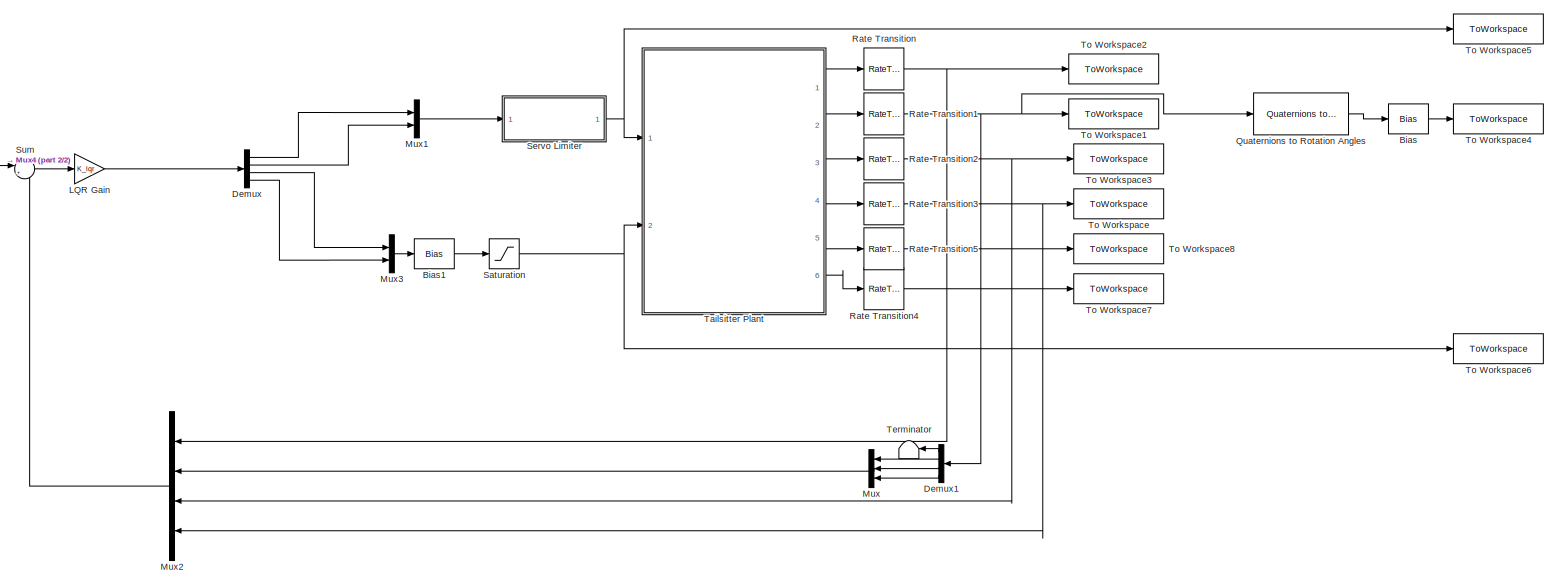
[diagram: root canvas - part 1/2, most of the canvas]
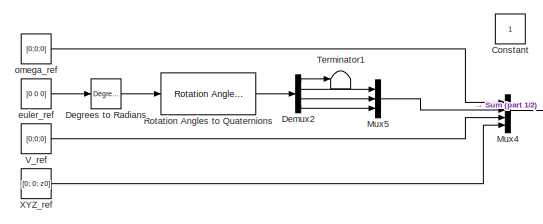
[diagram: root canvas - part 2/2, top left region]
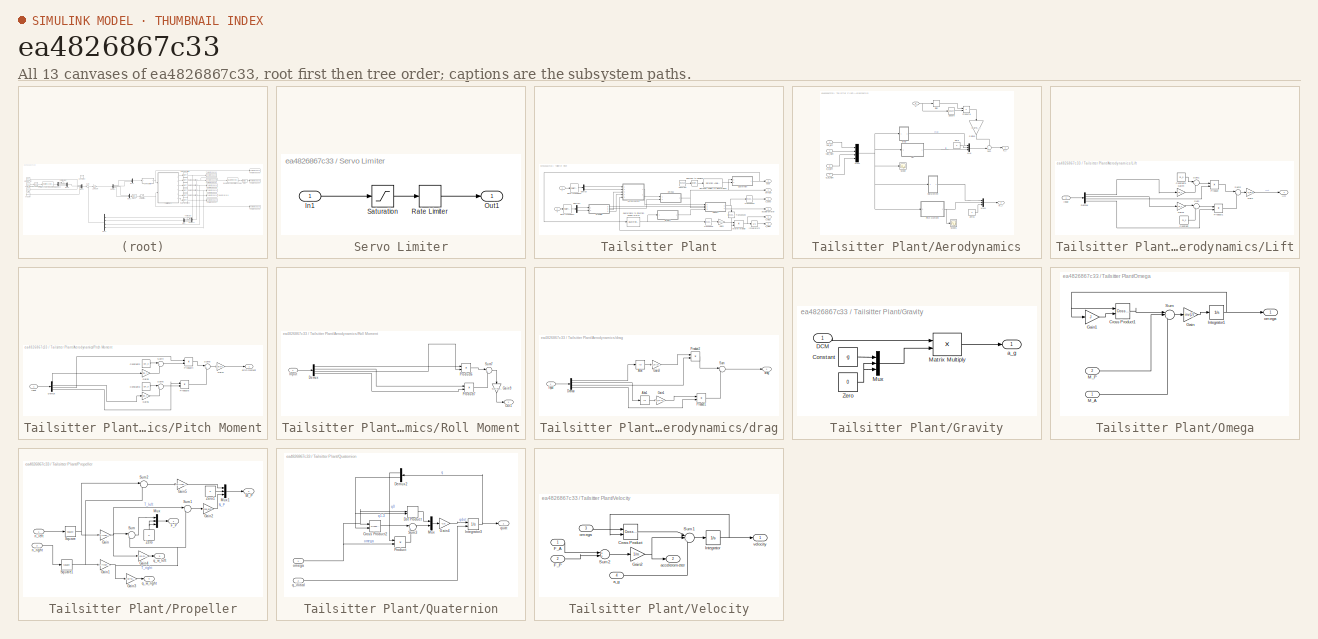
[diagram: thumbnail index - all 13 canvases of the model, root first then tree order]
MODEL slx_ea4826867c33
KIND model
CONFIG AbsTol = auto
CONFIG EnableMultiTasking = off
CONFIG FixedStep = auto
CONFIG MaxStep = auto
CONFIG MinStep = auto
CONFIG RelTol = 1e-3
CONFIG SampleTimeConstraint = Unconstrained
CONFIG SolverName = VariableStepAuto
CONFIG StartTime = 0.0
CONFIG StopTime = tf
BLOCK [Bias] Bias
  Bias = [0; pi/2; 0]
  SaturateOnIntegerOverflow = off
BLOCK [Bias] Bias1
  Bias = motor_eq
  SaturateOnIntegerOverflow = off
BLOCK [Constant] Constant
  IOType = siggen
BLOCK [Reference] Degrees to Radians  REF=simulink_extras/Transformations/Degrees to
Radians
  Ports = [1, 1]
  SourceBlock = simulink_extras/Transformations/Degrees to\nRadians
  SourceProductBaseCode = SL
  SourceType = DegreesToRadians
BLOCK [Demux] Demux
  Ports = [1, 4]
BLOCK [Demux] Demux1
  NameLocation = top
  Ports = [1, 4]
BLOCK [Demux] Demux2
  Ports = [1, 4]
BLOCK [Gain] LQR Gain
  Gain = K_lqr
  Multiplication = Matrix(K*u)
BLOCK [Mux] Mux
  DisplayOption = bar
  Inputs = 3
  NameLocation = top
  Ports = [3, 1]
BLOCK [Mux] Mux1
  DisplayOption = bar
  Inputs = 2
  Ports = [2, 1]
BLOCK [Mux] Mux2
  DisplayOption = bar
  NameLocation = top
  Ports = [4, 1]
BLOCK [Mux] Mux3
  DisplayOption = bar
  Inputs = 2
  Ports = [2, 1]
BLOCK [Mux] Mux4
  DisplayOption = bar
  Ports = [4, 1]
BLOCK [Mux] Mux5
  DisplayOption = bar
  Inputs = 3
  Ports = [3, 1]
BLOCK [Reference] Quaternions to Rotation Angles  REF=sharedtransform/Quaternions to Rotation Angles
  AttributesFormatString = Rotation Order: %<rotationOrder>
  Ports = [1, 1]
  SourceBlock = sharedtransform/Quaternions to Rotation Angles
  SourceProductBaseCode = AE,PW,DR,MT,UV,VE
  SourceType = Quat2Ang
BLOCK [RateTransition] Rate Transition
  OutPortSampleTime = dt
BLOCK [RateTransition] Rate Transition1
  OutPortSampleTime = dt
BLOCK [RateTransition] Rate Transition2
  OutPortSampleTime = dt
BLOCK [RateTransition] Rate Transition3
  OutPortSampleTime = dt
BLOCK [RateTransition] Rate Transition4
  OutPortSampleTime = 0.005
BLOCK [RateTransition] Rate Transition5
  OutPortSampleTime = dt
BLOCK [Reference] Rotation Angles to Quaternions  REF=sharedtransform/Rotation Angles to Quaternions
  AttributesFormatString = Rotation Order: %<rotationOrder>
  Ports = [1, 1]
  SourceBlock = sharedtransform/Rotation Angles to Quaternions
  SourceProductBaseCode = AE,PW,DR,MT,UV,VE
  SourceType = Ang2Quat
BLOCK [Saturate] Saturation
  LowerLimit = 0
  UpperLimit = 500
BLOCK [SubSystem] Servo Limiter
  Ports = [1, 1]
  RequestExecContextInheritance = off
BLOCK [Inport] Servo Limiter/In1
BLOCK [Outport] Servo Limiter/Out1
BLOCK [RateLimiter] Servo Limiter/Rate Limiter
  FallingSlewLimit = -400
  RisingSlewLimit = 400
  SampleTimeMode = inherited
BLOCK [Saturate] Servo Limiter/Saturation
  LowerLimit = -20
  UpperLimit = 20
BLOCK [Sum] Sum
  Inputs = |+-
  Ports = [2, 1]
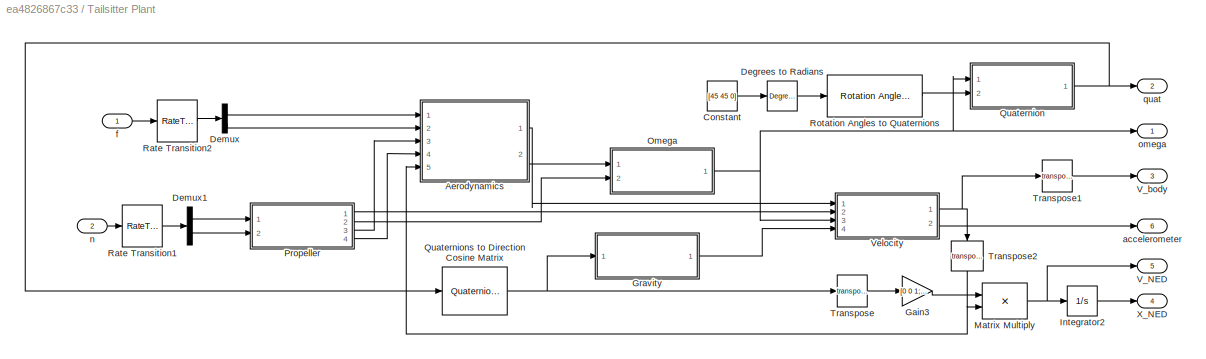
BLOCK [SubSystem] Tailsitter Plant
  Ports = [2, 6]
  RequestExecContextInheritance = off
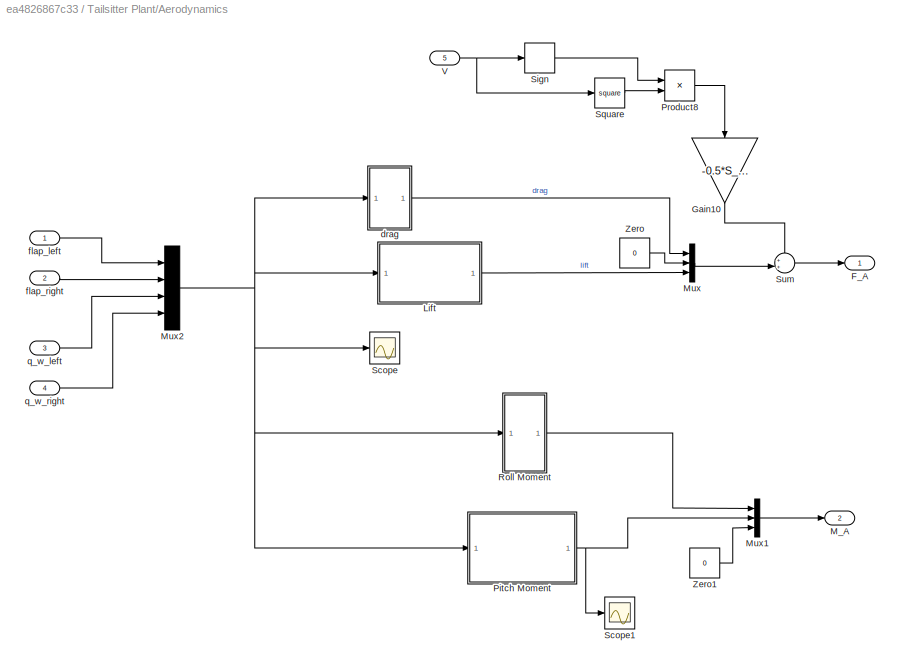
BLOCK [SubSystem] Tailsitter Plant/Aerodynamics
  Ports = [5, 2]
  RequestExecContextInheritance = off
BLOCK [Outport] Tailsitter Plant/Aerodynamics/F_A
BLOCK [Gain] Tailsitter Plant/Aerodynamics/Gain10
  Gain = -0.5*S_w*diag([0.1 0.1 1.3])
  Multiplication = Matrix(K*u) (u vector)
  NameLocation = left
BLOCK [SubSystem] Tailsitter Plant/Aerodynamics/Lift
  Ports = [1, 1]
  RequestExecContextInheritance = off
BLOCK [Constant] Tailsitter Plant/Aerodynamics/Lift/Constant
  Value = CL_0
BLOCK [Constant] Tailsitter Plant/Aerodynamics/Lift/Constant1
  Value = CL_0
BLOCK [Demux] Tailsitter Plant/Aerodynamics/Lift/Demux
  Ports = [1, 4]
BLOCK [Gain] Tailsitter Plant/Aerodynamics/Lift/Gain
  Gain = -S_w/2
BLOCK [Gain] Tailsitter Plant/Aerodynamics/Lift/Gain1
  Gain = CL_f
BLOCK [Gain] Tailsitter Plant/Aerodynamics/Lift/Gain4
  Gain = CL_f
BLOCK [Inport] Tailsitter Plant/Aerodynamics/Lift/Input
BLOCK [Product] Tailsitter Plant/Aerodynamics/Lift/Product
  Ports = [2, 1]
BLOCK [Product] Tailsitter Plant/Aerodynamics/Lift/Product1
  Ports = [2, 1]
BLOCK [Sum] Tailsitter Plant/Aerodynamics/Lift/Sum
  Inputs = |++
  Ports = [2, 1]
BLOCK [Sum] Tailsitter Plant/Aerodynamics/Lift/Sum1
  Inputs = |++
  Ports = [2, 1]
BLOCK [Sum] Tailsitter Plant/Aerodynamics/Lift/Sum2
  Inputs = |++
  Ports = [2, 1]
BLOCK [Outport] Tailsitter Plant/Aerodynamics/Lift/lift
BLOCK [Outport] Tailsitter Plant/Aerodynamics/M_A
  Port = 2
BLOCK [Mux] Tailsitter Plant/Aerodynamics/Mux
  DisplayOption = bar
  Inputs = 3
  Ports = [3, 1]
BLOCK [Mux] Tailsitter Plant/Aerodynamics/Mux1
  DisplayOption = bar
  Inputs = 3
  Ports = [3, 1]
BLOCK [Mux] Tailsitter Plant/Aerodynamics/Mux2
  DisplayOption = bar
  Ports = [4, 1]
BLOCK [SubSystem] Tailsitter Plant/Aerodynamics/Pitch Moment
  Ports = [1, 1]
  RequestExecContextInheritance = off
BLOCK [Constant] Tailsitter Plant/Aerodynamics/Pitch Moment/Constant2
  Value = Cm_0
BLOCK [Constant] Tailsitter Plant/Aerodynamics/Pitch Moment/Constant3
  Value = Cm_0
BLOCK [Demux] Tailsitter Plant/Aerodynamics/Pitch Moment/Demux
  Ports = [1, 4]
BLOCK [Gain] Tailsitter Plant/Aerodynamics/Pitch Moment/Gain5
  Gain = Cm_f
BLOCK [Gain] Tailsitter Plant/Aerodynamics/Pitch Moment/Gain6
  Gain = Cm_f
BLOCK [Gain] Tailsitter Plant/Aerodynamics/Pitch Moment/Gain7
  Gain = S_w/2*c_bar
BLOCK [Inport] Tailsitter Plant/Aerodynamics/Pitch Moment/Input
BLOCK [Product] Tailsitter Plant/Aerodynamics/Pitch Moment/Product4
  Ports = [2, 1]
BLOCK [Product] Tailsitter Plant/Aerodynamics/Pitch Moment/Product5
  Ports = [2, 1]
BLOCK [Sum] Tailsitter Plant/Aerodynamics/Pitch Moment/Sum4
  Inputs = |++
  Ports = [2, 1]
BLOCK [Sum] Tailsitter Plant/Aerodynamics/Pitch Moment/Sum5
  Inputs = |++
  Ports = [2, 1]
BLOCK [Sum] Tailsitter Plant/Aerodynamics/Pitch Moment/Sum6
  Inputs = |++
  Ports = [2, 1]
BLOCK [Outport] Tailsitter Plant/Aerodynamics/Pitch Moment/pitch moment
BLOCK [Product] Tailsitter Plant/Aerodynamics/Product8
  Ports = [2, 1]
BLOCK [SubSystem] Tailsitter Plant/Aerodynamics/Roll Moment
  Ports = [1, 1]
  RequestExecContextInheritance = off
BLOCK [Demux] Tailsitter Plant/Aerodynamics/Roll Moment/Demux
  Ports = [1, 4]
BLOCK [Gain] Tailsitter Plant/Aerodynamics/Roll Moment/Gain9
  Gain = S_w/2*b*Cl_f
  NameLocation = left
BLOCK [Inport] Tailsitter Plant/Aerodynamics/Roll Moment/Input
BLOCK [Outport] Tailsitter Plant/Aerodynamics/Roll Moment/Out1
BLOCK [Product] Tailsitter Plant/Aerodynamics/Roll Moment/Product6
  Ports = [2, 1]
BLOCK [Product] Tailsitter Plant/Aerodynamics/Roll Moment/Product7
  Ports = [2, 1]
BLOCK [Sum] Tailsitter Plant/Aerodynamics/Roll Moment/Sum7
  Inputs = |+-
  Ports = [2, 1]
BLOCK [Scope] Tailsitter Plant/Aerodynamics/Scope
  Floating = off
  NumInputPorts = 1
  Ports = [1]
  ScopeSpecificationString = Simulink.scopes.TimeScopeBlockCfg('CurrentConfiguration', extmgr.ConfigurationSet(extmgr.Configuration('Core','General UI',true),extmgr.Configuration('Core','Source UI',true),extmgr.Configuration('Sources','WiredSimulink',true,'DataLoggingVariableName','ScopeData3'),extmgr.Configuration('Visuals','Time Domain',true,'SerializedDisplays',{struct('MinYLimReal','-13.86762','MaxYLimReal','107.44376','Y...<+1414ch>
BLOCK [Scope] Tailsitter Plant/Aerodynamics/Scope1
  Floating = off
  NumInputPorts = 1
  Ports = [1]
  ScopeSpecificationString = Simulink.scopes.TimeScopeBlockCfg('CurrentConfiguration', extmgr.ConfigurationSet(extmgr.Configuration('Core','General UI',true),extmgr.Configuration('Core','Source UI',true),extmgr.Configuration('Sources','WiredSimulink',true,'DataLoggingVariableName','ScopeData4'),extmgr.Configuration('Visuals','Time Domain',true,'SerializedDisplays',{struct('MinYLimReal','-0.01426','MaxYLimReal','0.02364','YLab...<+1371ch>
BLOCK [Signum] Tailsitter Plant/Aerodynamics/Sign
BLOCK [Math] Tailsitter Plant/Aerodynamics/Square
  Operator = square
  Ports = [1, 1]
BLOCK [Sum] Tailsitter Plant/Aerodynamics/Sum
  Inputs = ++|
  Ports = [2, 1]
BLOCK [Inport] Tailsitter Plant/Aerodynamics/V
  Port = 5
BLOCK [Constant] Tailsitter Plant/Aerodynamics/Zero
  OutDataTypeStr = Inherit: Inherit via back propagation
  Value = 0
BLOCK [Constant] Tailsitter Plant/Aerodynamics/Zero1
  OutDataTypeStr = Inherit: Inherit via back propagation
  Value = 0
BLOCK [SubSystem] Tailsitter Plant/Aerodynamics/drag
  Ports = [1, 1]
  RequestExecContextInheritance = off
BLOCK [Abs] Tailsitter Plant/Aerodynamics/drag/Abs
  SaturateOnIntegerOverflow = off
BLOCK [Abs] Tailsitter Plant/Aerodynamics/drag/Abs1
  SaturateOnIntegerOverflow = off
BLOCK [Demux] Tailsitter Plant/Aerodynamics/drag/Demux
  Ports = [1, 4]
BLOCK [Gain] Tailsitter Plant/Aerodynamics/drag/Gain1
  Gain = -S_w/2*CD_f
BLOCK [Gain] Tailsitter Plant/Aerodynamics/drag/Gain3
  Gain = -S_w/2*CD_f
BLOCK [Inport] Tailsitter Plant/Aerodynamics/drag/Input
BLOCK [Product] Tailsitter Plant/Aerodynamics/drag/Product1
  Ports = [2, 1]
BLOCK [Product] Tailsitter Plant/Aerodynamics/drag/Product2
  Ports = [2, 1]
BLOCK [Sum] Tailsitter Plant/Aerodynamics/drag/Sum
  Inputs = |++
  Ports = [2, 1]
BLOCK [Outport] Tailsitter Plant/Aerodynamics/drag/drag
BLOCK [Inport] Tailsitter Plant/Aerodynamics/flap_left
BLOCK [Inport] Tailsitter Plant/Aerodynamics/flap_right
  Port = 2
BLOCK [Inport] Tailsitter Plant/Aerodynamics/q_w_left
  Port = 3
BLOCK [Inport] Tailsitter Plant/Aerodynamics/q_w_right
  Port = 4
BLOCK [Constant] Tailsitter Plant/Constant
  Value = [45 45 0]
BLOCK [Reference] Tailsitter Plant/Degrees to Radians  REF=simulink_extras/Transformations/Degrees to
Radians
  Ports = [1, 1]
  SourceBlock = simulink_extras/Transformations/Degrees to\nRadians
  SourceProductBaseCode = SL
  SourceType = DegreesToRadians
BLOCK [Demux] Tailsitter Plant/Demux
  Outputs = 2
  Ports = [1, 2]
BLOCK [Demux] Tailsitter Plant/Demux1
  Outputs = 2
  Ports = [1, 2]
BLOCK [Gain] Tailsitter Plant/Gain3
  Gain = [0 0 1; 0 1 0; -1 0 0]
  Multiplication = Matrix(K*u)
BLOCK [SubSystem] Tailsitter Plant/Gravity
  Ports = [1, 1]
  RequestExecContextInheritance = off
BLOCK [Constant] Tailsitter Plant/Gravity/Constant
  Value = -g
BLOCK [Inport] Tailsitter Plant/Gravity/DCM
BLOCK [Product] Tailsitter Plant/Gravity/Matrix Multiply
  Multiplication = Matrix(*)
  Ports = [2, 1]
BLOCK [Mux] Tailsitter Plant/Gravity/Mux
  DisplayOption = bar
  Inputs = 3
  Ports = [3, 1]
BLOCK [Constant] Tailsitter Plant/Gravity/Zero
  OutDataTypeStr = Inherit: Inherit via back propagation
  Value = 0
BLOCK [Outport] Tailsitter Plant/Gravity/a_g
BLOCK [Integrator] Tailsitter Plant/Integrator2
  InitialCondition = [0;0;z0]
  Ports = [1, 1]
BLOCK [Product] Tailsitter Plant/Matrix Multiply
  Multiplication = Matrix(*)
  Ports = [2, 1]
BLOCK [SubSystem] Tailsitter Plant/Omega
  NameLocation = top
  Ports = [2, 1]
  RequestExecContextInheritance = off
BLOCK [Reference] Tailsitter Plant/Omega/Cross Product1  REF=vrlib/Utilities/Cross Product
  Ports = [2, 1]
  SourceBlock = vrlib/Utilities/Cross Product
  SourceProductBaseCode = SL
  SourceType = Cross Product
BLOCK [Gain] Tailsitter Plant/Omega/Gain
  Gain = inv(J)
  Multiplication = Matrix(K*u) (u vector)
BLOCK [Gain] Tailsitter Plant/Omega/Gain1
  Gain = J
  Multiplication = Matrix(K*u) (u vector)
BLOCK [Integrator] Tailsitter Plant/Omega/Integrator1
  Ports = [1, 1]
BLOCK [Inport] Tailsitter Plant/Omega/M_A
BLOCK [Inport] Tailsitter Plant/Omega/M_P
  Port = 2
BLOCK [Sum] Tailsitter Plant/Omega/Sum
  Inputs = |-++
  Ports = [3, 1]
BLOCK [Outport] Tailsitter Plant/Omega/omega
BLOCK [SubSystem] Tailsitter Plant/Propeller
  Ports = [2, 4]
  RequestExecContextInheritance = off
BLOCK [Outport] Tailsitter Plant/Propeller/F_P
BLOCK [Gain] Tailsitter Plant/Propeller/Gain
  Gain = CT*rho*D^4
BLOCK [Gain] Tailsitter Plant/Propeller/Gain1
  Gain = CT*rho*D^4
BLOCK [Gain] Tailsitter Plant/Propeller/Gain2
  Gain = prop_arm
BLOCK [Gain] Tailsitter Plant/Propeller/Gain3
  Gain = 4/(pi*D^2)
BLOCK [Gain] Tailsitter Plant/Propeller/Gain4
  Gain = 4/(pi*D^2)
BLOCK [Gain] Tailsitter Plant/Propeller/Gain5
  Gain = CP*rho*D^5/(2*pi)
BLOCK [Outport] Tailsitter Plant/Propeller/M_P
  Port = 2
BLOCK [Mux] Tailsitter Plant/Propeller/Mux
  DisplayOption = bar
  Inputs = 3
  Ports = [3, 1]
BLOCK [Mux] Tailsitter Plant/Propeller/Mux1
  DisplayOption = bar
  Inputs = 3
  Ports = [3, 1]
BLOCK [Math] Tailsitter Plant/Propeller/Square
  Operator = square
  Ports = [1, 1]
BLOCK [Math] Tailsitter Plant/Propeller/Square1
  Operator = square
  Ports = [1, 1]
BLOCK [Sum] Tailsitter Plant/Propeller/Sum
  Inputs = |++
  Ports = [2, 1]
BLOCK [Sum] Tailsitter Plant/Propeller/Sum1
  Inputs = |+-
  Ports = [2, 1]
BLOCK [Sum] Tailsitter Plant/Propeller/Sum2
  Inputs = |-+
  Ports = [2, 1]
BLOCK [Constant] Tailsitter Plant/Propeller/Zero
  NameLocation = right
  OutDataTypeStr = Inherit: Inherit via back propagation
  Value = 0
BLOCK [Constant] Tailsitter Plant/Propeller/Zero1
  OutDataTypeStr = Inherit: Inherit via back propagation
  Value = 0
BLOCK [Inport] Tailsitter Plant/Propeller/n_left
BLOCK [Inport] Tailsitter Plant/Propeller/n_right
  Port = 2
BLOCK [Outport] Tailsitter Plant/Propeller/q_w_left
  Port = 3
BLOCK [Outport] Tailsitter Plant/Propeller/q_w_right
  Port = 4
BLOCK [SubSystem] Tailsitter Plant/Quaternion
  Ports = [2, 1]
  RequestExecContextInheritance = off
BLOCK [Reference] Tailsitter Plant/Quaternion/Cross Product2  REF=vrlib/Utilities/Cross Product
  Ports = [2, 1]
  SourceBlock = vrlib/Utilities/Cross Product
  SourceProductBaseCode = SL
  SourceType = Cross Product
BLOCK [Demux] Tailsitter Plant/Quaternion/Demux2
  NameLocation = top
  Outputs = 2
  Ports = [1, 2]
BLOCK [DotProduct] Tailsitter Plant/Quaternion/Dot Product
  OutDataTypeStr = Inherit: Inherit via internal rule
BLOCK [Gain] Tailsitter Plant/Quaternion/Gain4
  Gain = -0.5
BLOCK [Integrator] Tailsitter Plant/Quaternion/Integrator3
  InitialCondition = [1; 0; 0; 0]
  InitialConditionSource = external
  Ports = [2, 1]
BLOCK [Mux] Tailsitter Plant/Quaternion/Mux
  DisplayOption = bar
  Inputs = 2
  Ports = [2, 1]
BLOCK [Product] Tailsitter Plant/Quaternion/Product
  Ports = [2, 1]
BLOCK [Sum] Tailsitter Plant/Quaternion/Sum3
  Inputs = |+-
  Ports = [2, 1]
BLOCK [Inport] Tailsitter Plant/Quaternion/omega
BLOCK [Inport] Tailsitter Plant/Quaternion/q_initial
  Port = 2
BLOCK [Outport] Tailsitter Plant/Quaternion/quat
BLOCK [Reference] Tailsitter Plant/Quaternions to Direction Cosine Matrix  REF=sharedtransform/Quaternions to 
Direction Cosine Matrix
  Ports = [1, 1]
  SourceBlock = sharedtransform/Quaternions to \nDirection Cosine Matrix
  SourceProductBaseCode = AE,PW,DR,MT,UV,VE
  SourceType = Quaternion2DCM
BLOCK [RateTransition] Tailsitter Plant/Rate Transition1
  OutPortSampleTimeOpt = Inherit
BLOCK [RateTransition] Tailsitter Plant/Rate Transition2
  OutPortSampleTimeOpt = Inherit
BLOCK [Reference] Tailsitter Plant/Rotation Angles to Quaternions  REF=sharedtransform/Rotation Angles to Quaternions
  AttributesFormatString = Rotation Order: %<rotationOrder>
  Ports = [1, 1]
  SourceBlock = sharedtransform/Rotation Angles to Quaternions
  SourceProductBaseCode = AE,PW,DR,MT,UV,VE
  SourceType = Ang2Quat
BLOCK [Math] Tailsitter Plant/Transpose
  Operator = transpose
  Ports = [1, 1]
BLOCK [Math] Tailsitter Plant/Transpose1
  Operator = transpose
  Ports = [1, 1]
BLOCK [Math] Tailsitter Plant/Transpose2
  NameLocation = left
  Operator = transpose
  Ports = [1, 1]
BLOCK [Outport] Tailsitter Plant/V_NED
  Port = 5
BLOCK [Outport] Tailsitter Plant/V_body
  Port = 3
BLOCK [SubSystem] Tailsitter Plant/Velocity
  Ports = [4, 2]
  RequestExecContextInheritance = off
BLOCK [Reference] Tailsitter Plant/Velocity/Cross Product  REF=vrlib/Utilities/Cross Product
  Ports = [2, 1]
  SourceBlock = vrlib/Utilities/Cross Product
  SourceProductBaseCode = SL
  SourceType = Cross Product
BLOCK [Inport] Tailsitter Plant/Velocity/F_A
BLOCK [Inport] Tailsitter Plant/Velocity/F_P
  Port = 2
BLOCK [Gain] Tailsitter Plant/Velocity/Gain2
  Gain = 1/m
BLOCK [Integrator] Tailsitter Plant/Velocity/Integrator
  Ports = [1, 1]
BLOCK [Sum] Tailsitter Plant/Velocity/Sum1
  Inputs = |-++
  Ports = [3, 1]
BLOCK [Sum] Tailsitter Plant/Velocity/Sum2
  Inputs = ++|
  Ports = [2, 1]
BLOCK [Inport] Tailsitter Plant/Velocity/a_g
  Port = 4
BLOCK [Outport] Tailsitter Plant/Velocity/accelerometer
  Port = 2
BLOCK [Inport] Tailsitter Plant/Velocity/omega
  Port = 3
BLOCK [Outport] Tailsitter Plant/Velocity/velocity
BLOCK [Outport] Tailsitter Plant/X_NED
  Port = 4
BLOCK [Outport] Tailsitter Plant/accelerometer
  Port = 6
BLOCK [Inport] Tailsitter Plant/f
BLOCK [Inport] Tailsitter Plant/n
  Port = 2
BLOCK [Outport] Tailsitter Plant/omega
BLOCK [Outport] Tailsitter Plant/quat
  Port = 2
BLOCK [Terminator] Terminator
  NameLocation = top
BLOCK [Terminator] Terminator1
BLOCK [ToWorkspace] To Workspace
  FixptAsFi = on
  MaxDataPoints = inf
  Ports = [1]
  SampleTime = -1
  VariableName = pos
BLOCK [ToWorkspace] To Workspace1
  FixptAsFi = on
  MaxDataPoints = inf
  Ports = [1]
  SampleTime = -1
  VariableName = quat
BLOCK [ToWorkspace] To Workspace2
  FixptAsFi = on
  MaxDataPoints = inf
  Ports = [1]
  SampleTime = -1
  VariableName = omega
BLOCK [ToWorkspace] To Workspace3
  FixptAsFi = on
  MaxDataPoints = inf
  Ports = [1]
  SampleTime = -1
  VariableName = V
BLOCK [ToWorkspace] To Workspace4
  FixptAsFi = on
  MaxDataPoints = inf
  Ports = [1]
  SampleTime = -1
  VariableName = euler
BLOCK [ToWorkspace] To Workspace5
  FixptAsFi = on
  MaxDataPoints = inf
  Ports = [1]
  SampleTime = -1
  VariableName = flaps
BLOCK [ToWorkspace] To Workspace6
  FixptAsFi = on
  MaxDataPoints = inf
  Ports = [1]
  SampleTime = -1
  VariableName = motors
BLOCK [ToWorkspace] To Workspace7
  FixptAsFi = on
  MaxDataPoints = inf
  Ports = [1]
  SampleTime = -1
  VariableName = accel
BLOCK [ToWorkspace] To Workspace8
  FixptAsFi = on
  MaxDataPoints = inf
  Ports = [1]
  SampleTime = -1
  VariableName = V_NED
BLOCK [Constant] V_ref
  Value = [0;0;0]
BLOCK [Constant] XYZ_ref
  Value = [0; 0; z0]
BLOCK [Constant] euler_ref
  Value = [0 0 0]
BLOCK [Constant] omega_ref
  Value = [0;0;0]
LINE Bias1:1 -> Saturation:1
LINE Bias:1 -> To Workspace4:1
LINE Degrees to Radians:1 -> Rotation Angles to Quaternions:1
LINE Demux1:1 -> Terminator:1
LINE Demux1:2 -> Mux:1
LINE Demux1:3 -> Mux:2
LINE Demux1:4 -> Mux:3
LINE Demux2:1 -> Terminator1:1
LINE Demux2:2 -> Mux5:1
LINE Demux2:3 -> Mux5:2
LINE Demux2:4 -> Mux5:3
LINE Demux:1 -> Mux1:1
LINE Demux:2 -> Mux1:2
LINE Demux:3 -> Mux3:1
LINE Demux:4 -> Mux3:2
LINE LQR Gain:1 -> Demux:1
LINE Mux1:1 -> Servo Limiter:1
LINE Mux2:1 -> Sum:2
LINE Mux3:1 -> Bias1:1
LINE Mux4:1 -> Sum:1
LINE Mux5:1 -> Mux4:2
LINE Mux:1 -> Mux2:2
LINE Quaternions to Rotation Angles:1 -> Bias:1
NET Rate Transition1:1 -> Demux1:1, Quaternions to Rotation Angles:1, To Workspace1:1
NET Rate Transition2:1 -> Mux2:3, To Workspace3:1
NET Rate Transition3:1 -> Mux2:4, To Workspace:1
LINE Rate Transition4:1 -> To Workspace7:1
LINE Rate Transition5:1 -> To Workspace8:1
NET Rate Transition:1 -> Mux2:1, To Workspace2:1
LINE Rotation Angles to Quaternions:1 -> Demux2:1
NET Saturation:1 -> Tailsitter Plant:2, To Workspace6:1
LINE Servo Limiter/In1:1 -> Servo Limiter/Saturation:1
LINE Servo Limiter/Rate Limiter:1 -> Servo Limiter/Out1:1
LINE Servo Limiter/Saturation:1 -> Servo Limiter/Rate Limiter:1
NET Servo Limiter:1 -> Tailsitter Plant:1, To Workspace5:1
LINE Sum:1 -> LQR Gain:1
LINE Tailsitter Plant/Aerodynamics/Gain10:1 -> Tailsitter Plant/Aerodynamics/Sum:1
LINE Tailsitter Plant/Aerodynamics/Lift/Constant1:1 -> Tailsitter Plant/Aerodynamics/Lift/Sum1:1
LINE Tailsitter Plant/Aerodynamics/Lift/Constant:1 -> Tailsitter Plant/Aerodynamics/Lift/Sum:2
LINE Tailsitter Plant/Aerodynamics/Lift/Demux:1 -> Tailsitter Plant/Aerodynamics/Lift/Gain4:1
LINE Tailsitter Plant/Aerodynamics/Lift/Demux:2 -> Tailsitter Plant/Aerodynamics/Lift/Gain1:1
LINE Tailsitter Plant/Aerodynamics/Lift/Demux:3 -> Tailsitter Plant/Aerodynamics/Lift/Product:2
LINE Tailsitter Plant/Aerodynamics/Lift/Demux:4 -> Tailsitter Plant/Aerodynamics/Lift/Product1:2
LINE Tailsitter Plant/Aerodynamics/Lift/Gain1:1 -> Tailsitter Plant/Aerodynamics/Lift/Sum:1
LINE Tailsitter Plant/Aerodynamics/Lift/Gain4:1 -> Tailsitter Plant/Aerodynamics/Lift/Sum1:2
LINE Tailsitter Plant/Aerodynamics/Lift/Gain:1 -> Tailsitter Plant/Aerodynamics/Lift/lift:1
LINE Tailsitter Plant/Aerodynamics/Lift/Input:1 -> Tailsitter Plant/Aerodynamics/Lift/Demux:1
LINE Tailsitter Plant/Aerodynamics/Lift/Product1:1 -> Tailsitter Plant/Aerodynamics/Lift/Sum2:2
LINE Tailsitter Plant/Aerodynamics/Lift/Product:1 -> Tailsitter Plant/Aerodynamics/Lift/Sum2:1
LINE Tailsitter Plant/Aerodynamics/Lift/Sum1:1 -> Tailsitter Plant/Aerodynamics/Lift/Product:1
LINE Tailsitter Plant/Aerodynamics/Lift/Sum2:1 -> Tailsitter Plant/Aerodynamics/Lift/Gain:1
LINE Tailsitter Plant/Aerodynamics/Lift/Sum:1 -> Tailsitter Plant/Aerodynamics/Lift/Product1:1
LINE Tailsitter Plant/Aerodynamics/Lift:1 -> Tailsitter Plant/Aerodynamics/Mux:3
LINE Tailsitter Plant/Aerodynamics/Mux1:1 -> Tailsitter Plant/Aerodynamics/M_A:1
NET Tailsitter Plant/Aerodynamics/Mux2:1 -> Tailsitter Plant/Aerodynamics/Lift:1, Tailsitter Plant/Aerodynamics/Pitch Moment:1, Tailsitter Plant/Aerodynamics/Roll Moment:1, Tailsitter Plant/Aerodynamics/Scope:1, Tailsitter Plant/Aerodynamics/drag:1
LINE Tailsitter Plant/Aerodynamics/Mux:1 -> Tailsitter Plant/Aerodynamics/Sum:2
LINE Tailsitter Plant/Aerodynamics/Pitch Moment/Constant2:1 -> Tailsitter Plant/Aerodynamics/Pitch Moment/Sum4:1
LINE Tailsitter Plant/Aerodynamics/Pitch Moment/Constant3:1 -> Tailsitter Plant/Aerodynamics/Pitch Moment/Sum5:1
LINE Tailsitter Plant/Aerodynamics/Pitch Moment/Demux:1 -> Tailsitter Plant/Aerodynamics/Pitch Moment/Gain5:1
LINE Tailsitter Plant/Aerodynamics/Pitch Moment/Demux:2 -> Tailsitter Plant/Aerodynamics/Pitch Moment/Gain6:1
LINE Tailsitter Plant/Aerodynamics/Pitch Moment/Demux:3 -> Tailsitter Plant/Aerodynamics/Pitch Moment/Product4:1
LINE Tailsitter Plant/Aerodynamics/Pitch Moment/Demux:4 -> Tailsitter Plant/Aerodynamics/Pitch Moment/Product5:1
LINE Tailsitter Plant/Aerodynamics/Pitch Moment/Gain5:1 -> Tailsitter Plant/Aerodynamics/Pitch Moment/Sum4:2
LINE Tailsitter Plant/Aerodynamics/Pitch Moment/Gain6:1 -> Tailsitter Plant/Aerodynamics/Pitch Moment/Sum5:2
LINE Tailsitter Plant/Aerodynamics/Pitch Moment/Gain7:1 -> Tailsitter Plant/Aerodynamics/Pitch Moment/pitch moment:1
LINE Tailsitter Plant/Aerodynamics/Pitch Moment/Input:1 -> Tailsitter Plant/Aerodynamics/Pitch Moment/Demux:1
LINE Tailsitter Plant/Aerodynamics/Pitch Moment/Product4:1 -> Tailsitter Plant/Aerodynamics/Pitch Moment/Sum6:1
LINE Tailsitter Plant/Aerodynamics/Pitch Moment/Product5:1 -> Tailsitter Plant/Aerodynamics/Pitch Moment/Sum6:2
LINE Tailsitter Plant/Aerodynamics/Pitch Moment/Sum4:1 -> Tailsitter Plant/Aerodynamics/Pitch Moment/Product4:2
LINE Tailsitter Plant/Aerodynamics/Pitch Moment/Sum5:1 -> Tailsitter Plant/Aerodynamics/Pitch Moment/Product5:2
LINE Tailsitter Plant/Aerodynamics/Pitch Moment/Sum6:1 -> Tailsitter Plant/Aerodynamics/Pitch Moment/Gain7:1
NET Tailsitter Plant/Aerodynamics/Pitch Moment:1 -> Tailsitter Plant/Aerodynamics/Mux1:2, Tailsitter Plant/Aerodynamics/Scope1:1
LINE Tailsitter Plant/Aerodynamics/Product8:1 -> Tailsitter Plant/Aerodynamics/Gain10:1
LINE Tailsitter Plant/Aerodynamics/Roll Moment/Demux:1 -> Tailsitter Plant/Aerodynamics/Roll Moment/Product6:1
LINE Tailsitter Plant/Aerodynamics/Roll Moment/Demux:2 -> Tailsitter Plant/Aerodynamics/Roll Moment/Product7:1
LINE Tailsitter Plant/Aerodynamics/Roll Moment/Demux:3 -> Tailsitter Plant/Aerodynamics/Roll Moment/Product6:2
LINE Tailsitter Plant/Aerodynamics/Roll Moment/Demux:4 -> Tailsitter Plant/Aerodynamics/Roll Moment/Product7:2
LINE Tailsitter Plant/Aerodynamics/Roll Moment/Gain9:1 -> Tailsitter Plant/Aerodynamics/Roll Moment/Out1:1
LINE Tailsitter Plant/Aerodynamics/Roll Moment/Input:1 -> Tailsitter Plant/Aerodynamics/Roll Moment/Demux:1
LINE Tailsitter Plant/Aerodynamics/Roll Moment/Product6:1 -> Tailsitter Plant/Aerodynamics/Roll Moment/Sum7:1
LINE Tailsitter Plant/Aerodynamics/Roll Moment/Product7:1 -> Tailsitter Plant/Aerodynamics/Roll Moment/Sum7:2
LINE Tailsitter Plant/Aerodynamics/Roll Moment/Sum7:1 -> Tailsitter Plant/Aerodynamics/Roll Moment/Gain9:1
LINE Tailsitter Plant/Aerodynamics/Roll Moment:1 -> Tailsitter Plant/Aerodynamics/Mux1:1
LINE Tailsitter Plant/Aerodynamics/Sign:1 -> Tailsitter Plant/Aerodynamics/Product8:1
LINE Tailsitter Plant/Aerodynamics/Square:1 -> Tailsitter Plant/Aerodynamics/Product8:2
LINE Tailsitter Plant/Aerodynamics/Sum:1 -> Tailsitter Plant/Aerodynamics/F_A:1
NET Tailsitter Plant/Aerodynamics/V:1 -> Tailsitter Plant/Aerodynamics/Sign:1, Tailsitter Plant/Aerodynamics/Square:1
LINE Tailsitter Plant/Aerodynamics/Zero1:1 -> Tailsitter Plant/Aerodynamics/Mux1:3
LINE Tailsitter Plant/Aerodynamics/Zero:1 -> Tailsitter Plant/Aerodynamics/Mux:2
LINE Tailsitter Plant/Aerodynamics/drag/Abs1:1 -> Tailsitter Plant/Aerodynamics/drag/Gain1:1
LINE Tailsitter Plant/Aerodynamics/drag/Abs:1 -> Tailsitter Plant/Aerodynamics/drag/Gain3:1
LINE Tailsitter Plant/Aerodynamics/drag/Demux:1 -> Tailsitter Plant/Aerodynamics/drag/Abs:1
LINE Tailsitter Plant/Aerodynamics/drag/Demux:2 -> Tailsitter Plant/Aerodynamics/drag/Abs1:1
LINE Tailsitter Plant/Aerodynamics/drag/Demux:3 -> Tailsitter Plant/Aerodynamics/drag/Product2:2
LINE Tailsitter Plant/Aerodynamics/drag/Demux:4 -> Tailsitter Plant/Aerodynamics/drag/Product1:2
LINE Tailsitter Plant/Aerodynamics/drag/Gain1:1 -> Tailsitter Plant/Aerodynamics/drag/Product1:1
LINE Tailsitter Plant/Aerodynamics/drag/Gain3:1 -> Tailsitter Plant/Aerodynamics/drag/Product2:1
LINE Tailsitter Plant/Aerodynamics/drag/Input:1 -> Tailsitter Plant/Aerodynamics/drag/Demux:1
LINE Tailsitter Plant/Aerodynamics/drag/Product1:1 -> Tailsitter Plant/Aerodynamics/drag/Sum:2
LINE Tailsitter Plant/Aerodynamics/drag/Product2:1 -> Tailsitter Plant/Aerodynamics/drag/Sum:1
LINE Tailsitter Plant/Aerodynamics/drag/Sum:1 -> Tailsitter Plant/Aerodynamics/drag/drag:1
LINE Tailsitter Plant/Aerodynamics/drag:1 -> Tailsitter Plant/Aerodynamics/Mux:1
LINE Tailsitter Plant/Aerodynamics/flap_left:1 -> Tailsitter Plant/Aerodynamics/Mux2:1
LINE Tailsitter Plant/Aerodynamics/flap_right:1 -> Tailsitter Plant/Aerodynamics/Mux2:2
LINE Tailsitter Plant/Aerodynamics/q_w_left:1 -> Tailsitter Plant/Aerodynamics/Mux2:3
LINE Tailsitter Plant/Aerodynamics/q_w_right:1 -> Tailsitter Plant/Aerodynamics/Mux2:4
LINE Tailsitter Plant/Aerodynamics:1 -> Tailsitter Plant/Velocity:1
LINE Tailsitter Plant/Aerodynamics:2 -> Tailsitter Plant/Omega:1
LINE Tailsitter Plant/Constant:1 -> Tailsitter Plant/Degrees to Radians:1
LINE Tailsitter Plant/Degrees to Radians:1 -> Tailsitter Plant/Rotation Angles to Quaternions:1
LINE Tailsitter Plant/Demux1:1 -> Tailsitter Plant/Propeller:1
LINE Tailsitter Plant/Demux1:2 -> Tailsitter Plant/Propeller:2
LINE Tailsitter Plant/Demux:1 -> Tailsitter Plant/Aerodynamics:1
LINE Tailsitter Plant/Demux:2 -> Tailsitter Plant/Aerodynamics:2
LINE Tailsitter Plant/Gain3:1 -> Tailsitter Plant/Matrix Multiply:1
LINE Tailsitter Plant/Gravity/Constant:1 -> Tailsitter Plant/Gravity/Mux:1
LINE Tailsitter Plant/Gravity/DCM:1 -> Tailsitter Plant/Gravity/Matrix Multiply:1
LINE Tailsitter Plant/Gravity/Matrix Multiply:1 -> Tailsitter Plant/Gravity/a_g:1
LINE Tailsitter Plant/Gravity/Mux:1 -> Tailsitter Plant/Gravity/Matrix Multiply:2
NET Tailsitter Plant/Gravity/Zero:1 -> Tailsitter Plant/Gravity/Mux:2, Tailsitter Plant/Gravity/Mux:3
LINE Tailsitter Plant/Gravity:1 -> Tailsitter Plant/Velocity:4
LINE Tailsitter Plant/Integrator2:1 -> Tailsitter Plant/X_NED:1
NET Tailsitter Plant/Matrix Multiply:1 -> Tailsitter Plant/Integrator2:1, Tailsitter Plant/V_NED:1
LINE Tailsitter Plant/Omega/Cross Product1:1 -> Tailsitter Plant/Omega/Sum:1
LINE Tailsitter Plant/Omega/Gain1:1 -> Tailsitter Plant/Omega/Cross Product1:2
LINE Tailsitter Plant/Omega/Gain:1 -> Tailsitter Plant/Omega/Integrator1:1
NET Tailsitter Plant/Omega/Integrator1:1 -> Tailsitter Plant/Omega/Cross Product1:1, Tailsitter Plant/Omega/Gain1:1, Tailsitter Plant/Omega/omega:1
LINE Tailsitter Plant/Omega/M_A:1 -> Tailsitter Plant/Omega/Sum:3
LINE Tailsitter Plant/Omega/M_P:1 -> Tailsitter Plant/Omega/Sum:2
LINE Tailsitter Plant/Omega/Sum:1 -> Tailsitter Plant/Omega/Gain:1
NET Tailsitter Plant/Omega:1 -> Tailsitter Plant/Quaternion:1, Tailsitter Plant/Velocity:3, Tailsitter Plant/omega:1
NET Tailsitter Plant/Propeller/Gain1:1 -> Tailsitter Plant/Propeller/Gain3:1, Tailsitter Plant/Propeller/Sum1:2, Tailsitter Plant/Propeller/Sum:2
LINE Tailsitter Plant/Propeller/Gain2:1 -> Tailsitter Plant/Propeller/Mux1:3
LINE Tailsitter Plant/Propeller/Gain3:1 -> Tailsitter Plant/Propeller/q_w_right:1
LINE Tailsitter Plant/Propeller/Gain4:1 -> Tailsitter Plant/Propeller/q_w_left:1
LINE Tailsitter Plant/Propeller/Gain5:1 -> Tailsitter Plant/Propeller/Mux1:1
NET Tailsitter Plant/Propeller/Gain:1 -> Tailsitter Plant/Propeller/Gain4:1, Tailsitter Plant/Propeller/Sum1:1, Tailsitter Plant/Propeller/Sum:1
LINE Tailsitter Plant/Propeller/Mux1:1 -> Tailsitter Plant/Propeller/M_P:1
LINE Tailsitter Plant/Propeller/Mux:1 -> Tailsitter Plant/Propeller/F_P:1
NET Tailsitter Plant/Propeller/Square1:1 -> Tailsitter Plant/Propeller/Gain1:1, Tailsitter Plant/Propeller/Sum2:2
NET Tailsitter Plant/Propeller/Square:1 -> Tailsitter Plant/Propeller/Gain:1, Tailsitter Plant/Propeller/Sum2:1
LINE Tailsitter Plant/Propeller/Sum1:1 -> Tailsitter Plant/Propeller/Gain2:1
LINE Tailsitter Plant/Propeller/Sum2:1 -> Tailsitter Plant/Propeller/Gain5:1
LINE Tailsitter Plant/Propeller/Sum:1 -> Tailsitter Plant/Propeller/Mux:1
LINE Tailsitter Plant/Propeller/Zero1:1 -> Tailsitter Plant/Propeller/Mux1:2
NET Tailsitter Plant/Propeller/Zero:1 -> Tailsitter Plant/Propeller/Mux:2, Tailsitter Plant/Propeller/Mux:3
LINE Tailsitter Plant/Propeller/n_left:1 -> Tailsitter Plant/Propeller/Square:1
LINE Tailsitter Plant/Propeller/n_right:1 -> Tailsitter Plant/Propeller/Square1:1
LINE Tailsitter Plant/Propeller:1 -> Tailsitter Plant/Velocity:2
LINE Tailsitter Plant/Propeller:2 -> Tailsitter Plant/Omega:2
LINE Tailsitter Plant/Propeller:3 -> Tailsitter Plant/Aerodynamics:3
LINE Tailsitter Plant/Propeller:4 -> Tailsitter Plant/Aerodynamics:4
LINE Tailsitter Plant/Quaternion/Cross Product2:1 -> Tailsitter Plant/Quaternion/Sum3:1
LINE Tailsitter Plant/Quaternion/Demux2:1 -> Tailsitter Plant/Quaternion/Product:1
NET Tailsitter Plant/Quaternion/Demux2:2 -> Tailsitter Plant/Quaternion/Cross Product2:2, Tailsitter Plant/Quaternion/Dot Product:2
LINE Tailsitter Plant/Quaternion/Dot Product:1 -> Tailsitter Plant/Quaternion/Mux:1
LINE Tailsitter Plant/Quaternion/Gain4:1 -> Tailsitter Plant/Quaternion/Integrator3:1
NET Tailsitter Plant/Quaternion/Integrator3:1 -> Tailsitter Plant/Quaternion/Demux2:1, Tailsitter Plant/Quaternion/quat:1
LINE Tailsitter Plant/Quaternion/Mux:1 -> Tailsitter Plant/Quaternion/Gain4:1
LINE Tailsitter Plant/Quaternion/Product:1 -> Tailsitter Plant/Quaternion/Sum3:2
LINE Tailsitter Plant/Quaternion/Sum3:1 -> Tailsitter Plant/Quaternion/Mux:2
NET Tailsitter Plant/Quaternion/omega:1 -> Tailsitter Plant/Quaternion/Cross Product2:1, Tailsitter Plant/Quaternion/Dot Product:1, Tailsitter Plant/Quaternion/Product:2
LINE Tailsitter Plant/Quaternion/q_initial:1 -> Tailsitter Plant/Quaternion/Integrator3:2
NET Tailsitter Plant/Quaternion:1 -> Tailsitter Plant/Quaternions to Direction Cosine Matrix:1, Tailsitter Plant/quat:1
NET Tailsitter Plant/Quaternions to Direction Cosine Matrix:1 -> Tailsitter Plant/Gravity:1, Tailsitter Plant/Transpose:1
LINE Tailsitter Plant/Rate Transition1:1 -> Tailsitter Plant/Demux1:1
LINE Tailsitter Plant/Rate Transition2:1 -> Tailsitter Plant/Demux:1
LINE Tailsitter Plant/Rotation Angles to Quaternions:1 -> Tailsitter Plant/Quaternion:2
LINE Tailsitter Plant/Transpose1:1 -> Tailsitter Plant/V_body:1
NET Tailsitter Plant/Transpose2:1 -> Tailsitter Plant/Aerodynamics:5, Tailsitter Plant/Matrix Multiply:2
LINE Tailsitter Plant/Transpose:1 -> Tailsitter Plant/Gain3:1
LINE Tailsitter Plant/Velocity/Cross Product:1 -> Tailsitter Plant/Velocity/Sum1:1
LINE Tailsitter Plant/Velocity/F_A:1 -> Tailsitter Plant/Velocity/Sum2:1
LINE Tailsitter Plant/Velocity/F_P:1 -> Tailsitter Plant/Velocity/Sum2:2
NET Tailsitter Plant/Velocity/Gain2:1 -> Tailsitter Plant/Velocity/Sum1:2, Tailsitter Plant/Velocity/accelerometer:1
NET Tailsitter Plant/Velocity/Integrator:1 -> Tailsitter Plant/Velocity/Cross Product:2, Tailsitter Plant/Velocity/velocity:1
LINE Tailsitter Plant/Velocity/Sum1:1 -> Tailsitter Plant/Velocity/Integrator:1
LINE Tailsitter Plant/Velocity/Sum2:1 -> Tailsitter Plant/Velocity/Gain2:1
LINE Tailsitter Plant/Velocity/a_g:1 -> Tailsitter Plant/Velocity/Sum1:3
LINE Tailsitter Plant/Velocity/omega:1 -> Tailsitter Plant/Velocity/Cross Product:1
NET Tailsitter Plant/Velocity:1 -> Tailsitter Plant/Transpose1:1, Tailsitter Plant/Transpose2:1
LINE Tailsitter Plant/Velocity:2 -> Tailsitter Plant/accelerometer:1
LINE Tailsitter Plant/f:1 -> Tailsitter Plant/Rate Transition2:1
LINE Tailsitter Plant/n:1 -> Tailsitter Plant/Rate Transition1:1
LINE Tailsitter Plant:1 -> Rate Transition:1
LINE Tailsitter Plant:2 -> Rate Transition1:1
LINE Tailsitter Plant:3 -> Rate Transition2:1
LINE Tailsitter Plant:4 -> Rate Transition3:1
LINE Tailsitter Plant:5 -> Rate Transition5:1
LINE Tailsitter Plant:6 -> Rate Transition4:1
LINE V_ref:1 -> Mux4:3
LINE XYZ_ref:1 -> Mux4:4
LINE euler_ref:1 -> Degrees to Radians:1
LINE omega_ref:1 -> Mux4:1
note: NET lines group one-source signal fan-out (src -> all destinations, sorted); 1:1 wires keep LINE
